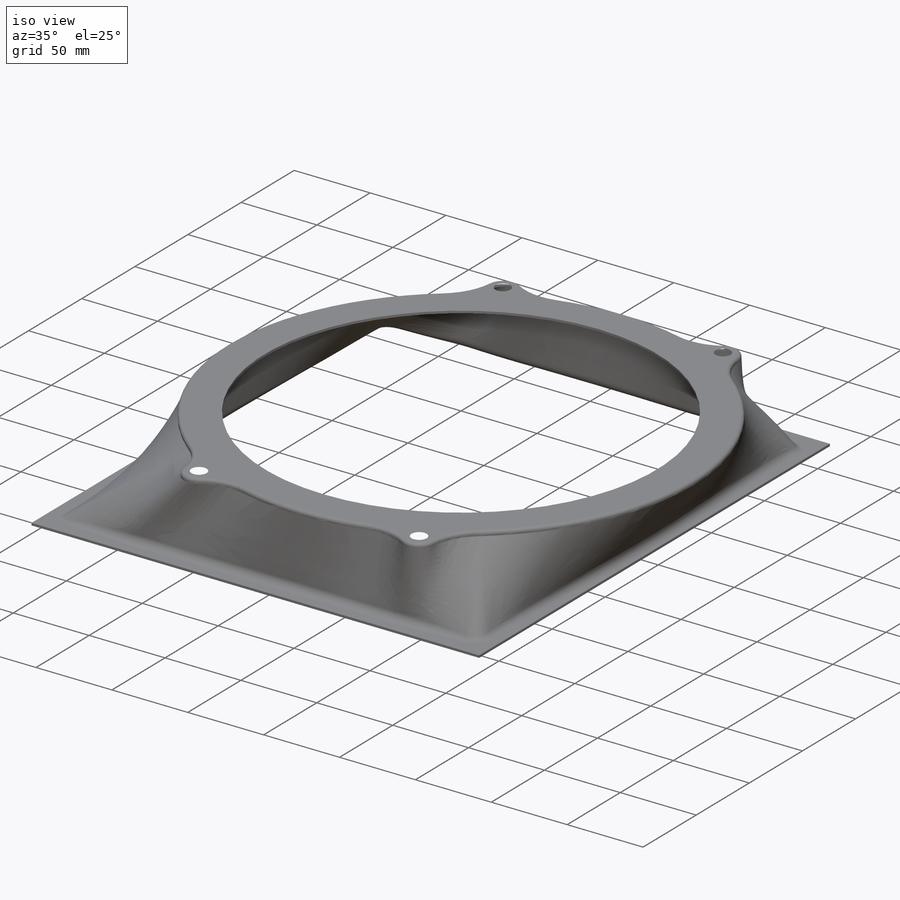
[diagram: iso view]
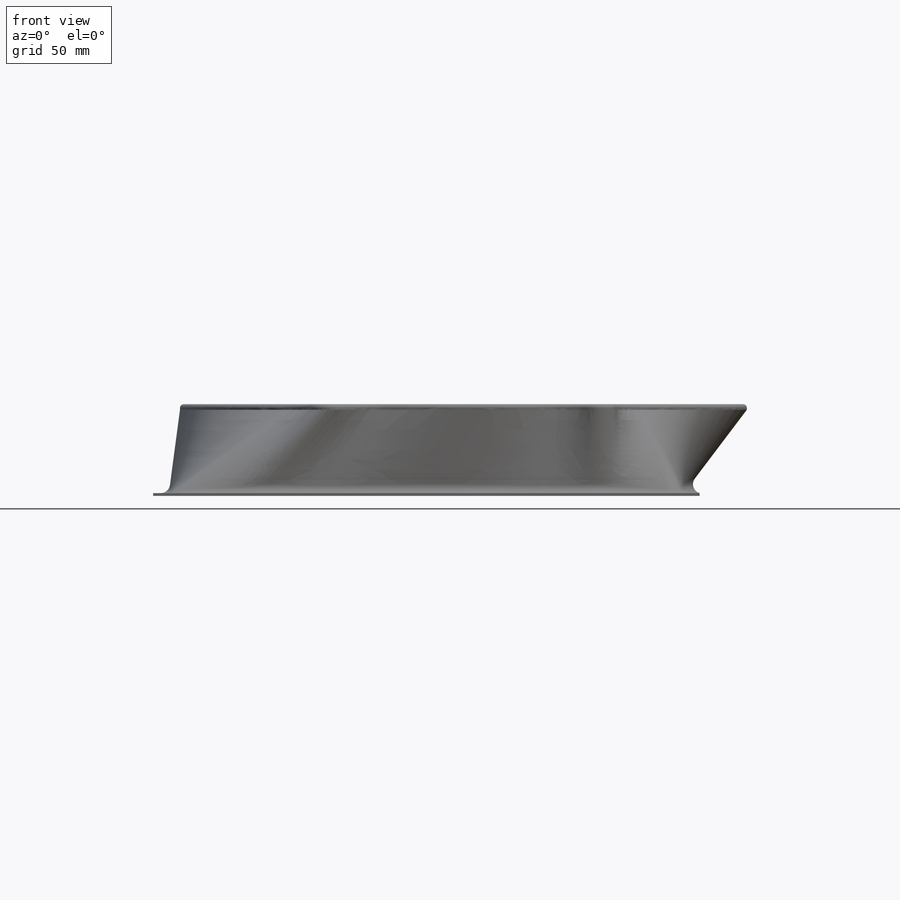
[diagram: front view]
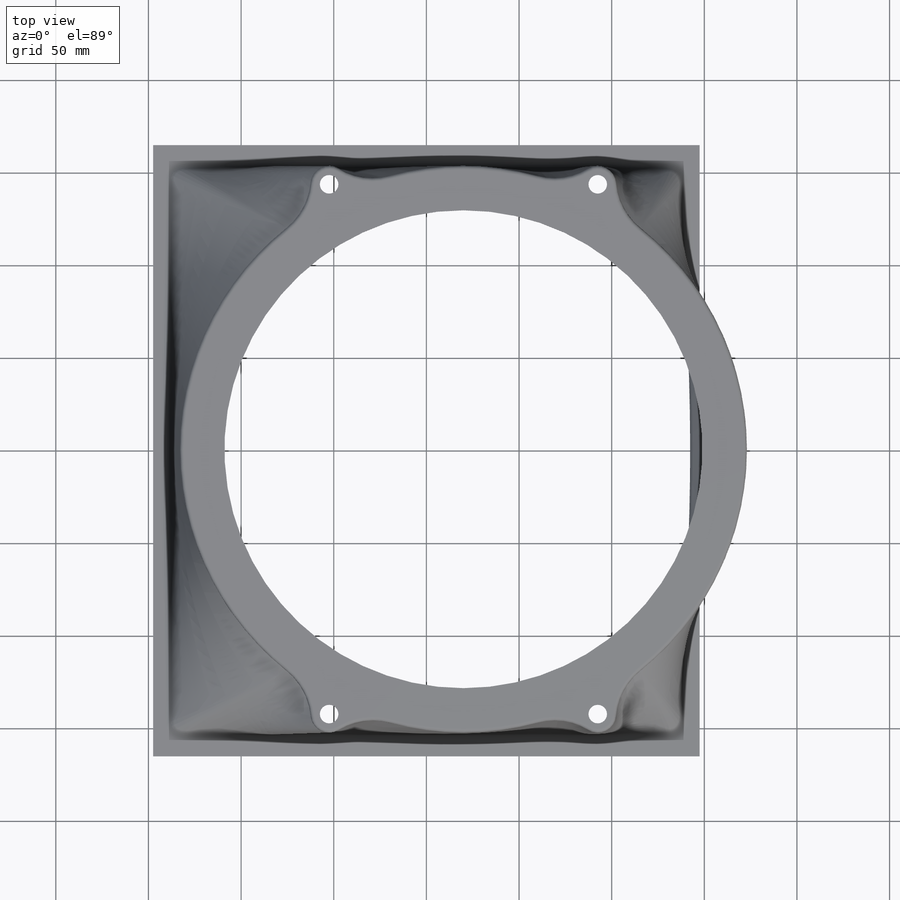
[diagram: top view]
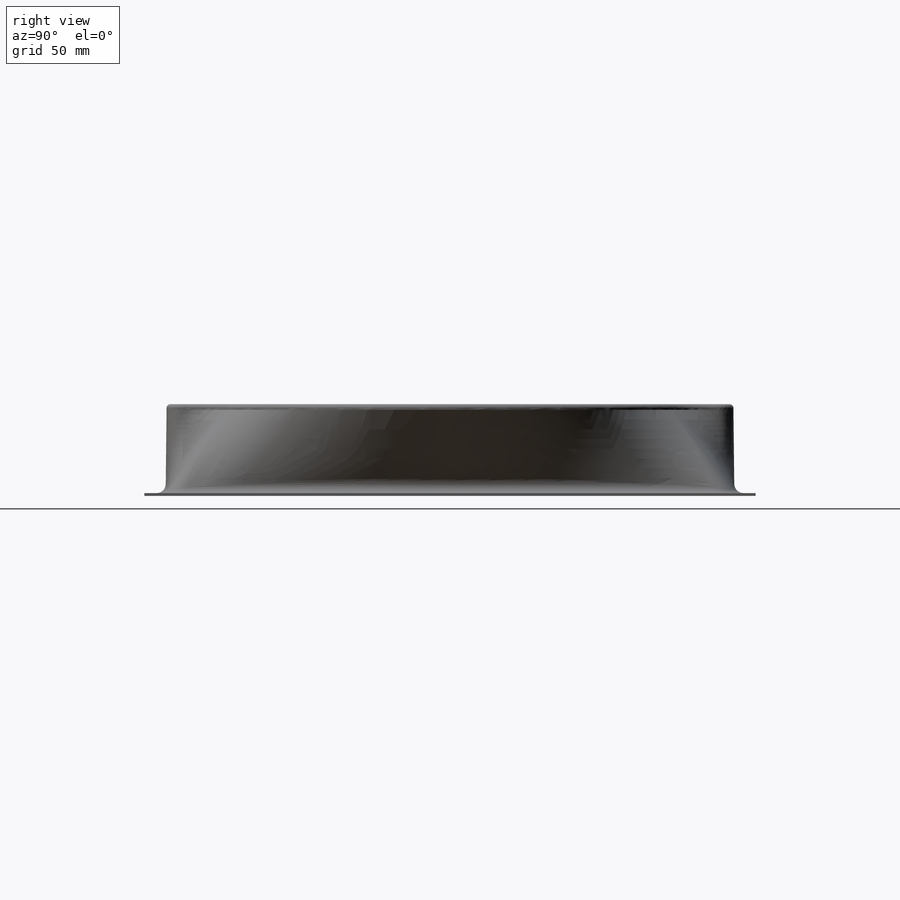
[diagram: right view]
SOLIDWORKS PART (.sldprt)
format: sldprt  version: not decoded by parser v0  size: 1,079,808 bytes
history: native  units: mm
features: sketch x6, fillet x3, extrude x2, material x1, plane x1, shell x1, cut_extrude x1 (+11 scaffold rows collapsed)
feature tree (26):
  scaffold x11  (default folders/planes/origin — collapsed)
  material  "Thornel Mat VMA"
  sketch  "Sketch1"  dims[c1.D1=330.0mm c1.D2=298.0mm c1.D3=10.0mm c2.D1=278.0mm c2.D2=307.0mm]
  plane  "Plane1"  Offset=45mm
  sketch  "Sketch2"  dims[c1.D1=~187.985084mm c1.D2=276.0mm c2.D1=306.0mm c2.D5=20.0mm c2.D6=35.0mm c2.D7=35.0mm c2.D8=35.0mm c3.D1=10.0mm c3.D3=20.0mm c3.D2=145.0mm c3.D4=286.0mm]
  sketch  "Sketch10"  dims[D1=295.0mm D2=330.0mm]
  extrude  "Boss-Extrude2"  Depth=1.5mm
  fillet  "Fillet6"  Radius=10mm
  sketch  "Sketch11"
  extrude  "Boss-Extrude3"  Depth=3mm
  fillet  "Fillet7"  Radius=5mm
  fillet  "Fillet8"  Radius=2mm
  sketch  "Sketch12"  dims[D1=258.0mm D2=20.0mm]
  shell  "Shell2"  Thickness=1.5mm
  sketch  "Sketch13"  dims[D1=10.0mm]
  cut_extrude  "Cut-Extrude2"  Depth=4mm
decode coverage: 12 of 13 modeling features carry decoded parameters
note: ~ marks probable driven/reference dimensions
note: suppression state not decoded; provenance and decode notes live in map.json
